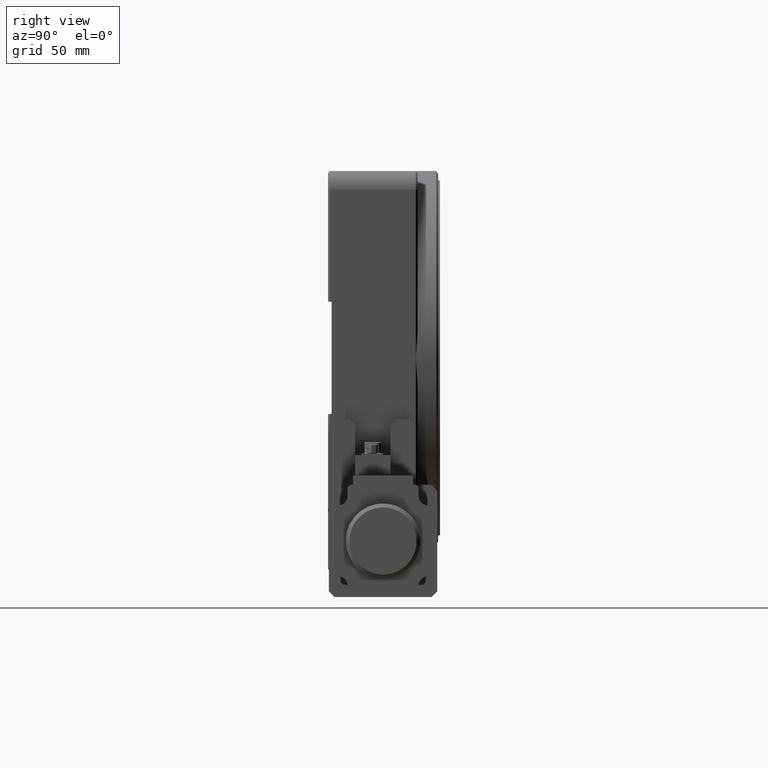
[diagram: clean part render]
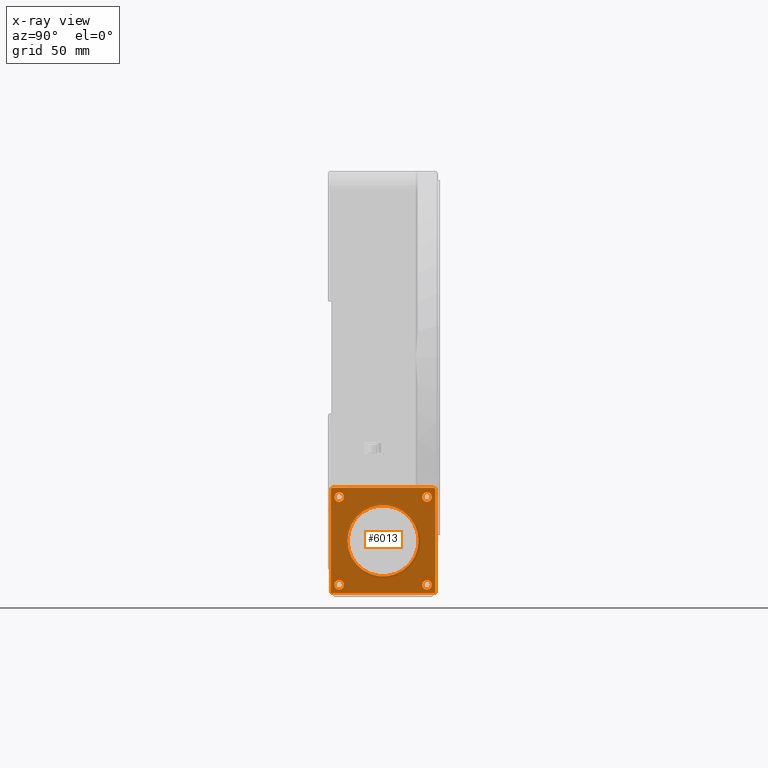
[diagram: x-ray — body ghosted, one internal face saturated and labeled with its STEP entity id]
A machine part, right view, then the same camera in x-ray: the body is ghosted and one INTERNAL B-rep face — a face not visible from any outside direction — is saturated and labeled: STEP entity #6013.
In plain terms, the highlighted planar face has unit normal (-1, -0, -0).
Its self-contained STEP definition (entity closure, byte-faithful):
#5 = CARTESIAN_POINT ( 'NONE',  ( 211.9999999999999700, 5.999999999999963600, -174.4999999999999700 ) ) ;
#218 = CARTESIAN_POINT ( 'NONE',  ( 211.9999999999999700, 57.49999999999995700, -225.8228756555322400 ) ) ;
#483 = VERTEX_POINT ( 'NONE', #12461 ) ;
#560 = VERTEX_POINT ( 'NONE', #37874 ) ;
#701 = DIRECTION ( 'NONE',  ( 1.000000000000000000, 9.381252327465557100E-016, 6.943570314702293000E-016 ) ) ;
#1060 = CARTESIAN_POINT ( 'NONE',  ( 211.9999999999999400, 52.99999999999996400, -174.4999999999999700 ) ) ;
#1563 = ORIENTED_EDGE ( 'NONE', *, *, #35692, .F. ) ;
#1700 = VERTEX_POINT ( 'NONE', #21903 ) ;
#1757 = ORIENTED_EDGE ( 'NONE', *, *, #31842, .T. ) ;
#2151 = DIRECTION ( 'NONE',  ( -1.000000000000000000, -9.381252327465557100E-016, -6.943570314702293000E-016 ) ) ;
#2283 = EDGE_CURVE ( 'NONE', #1700, #32612, #33193, .T. ) ;
#2380 = DIRECTION ( 'NONE',  ( 0.0000000000000000000, -1.000000000000000000, 1.110223024625155500E-013 ) ) ;
#2661 = ORIENTED_EDGE ( 'NONE', *, *, #40936, .T. ) ;
#3300 = CIRCLE ( 'NONE', #15641, 2.000000000000001800 ) ;
#3454 = DIRECTION ( 'NONE',  ( 0.0000000000000000000, -1.000000000000000000, 0.0000000000000000000 ) ) ;
#3483 = FACE_BOUND ( 'NONE', #11794, .T. ) ;
#3586 = CARTESIAN_POINT ( 'NONE',  ( 212.0000000000000000, 3.449999999999963300, -221.4999999999999400 ) ) ;
#4208 = CARTESIAN_POINT ( 'NONE',  ( 211.9999999999999700, 52.99999999999995700, -221.4999999999999400 ) ) ;
#4390 = VERTEX_POINT ( 'NONE', #19292 ) ;
#4634 = CIRCLE ( 'NONE', #6058, 2.550000000000000300 ) ;
#4672 = PLANE ( 'NONE',  #8717 ) ;
#5030 = CARTESIAN_POINT ( 'NONE',  ( 211.9999999999999700, 3.449999999999963300, -174.4999999999999700 ) ) ;
#5362 = ORIENTED_EDGE ( 'NONE', *, *, #19975, .T. ) ;
#5453 = VECTOR ( 'NONE', #48903, 1000.000000000000000 ) ;
#5797 = DIRECTION ( 'NONE',  ( 1.000000000000000000, 9.381252327465557100E-016, 6.943570314702293000E-016 ) ) ;
#6013 = ADVANCED_FACE ( 'NONE', ( #35267, #24645, #14032, #3483, #15287, #12768 ), #4672, .T. ) ;
#6058 = AXIS2_PLACEMENT_3D ( 'NONE', #31501, #46917, #3454 ) ;
#6110 = DIRECTION ( 'NONE',  ( 1.000000000000000000, 9.381252327465557100E-016, 6.943570314702293000E-016 ) ) ;
#6232 = AXIS2_PLACEMENT_3D ( 'NONE', #16722, #36950, #24418 ) ;
#6347 = CIRCLE ( 'NONE', #43045, 2.549999999999996700 ) ;
#6769 = CIRCLE ( 'NONE', #26236, 2.000000000000001800 ) ;
#6893 = ORIENTED_EDGE ( 'NONE', *, *, #43197, .T. ) ;
#7453 = DIRECTION ( 'NONE',  ( 1.000000000000000000, 9.381252327465557100E-016, 6.943570314702293000E-016 ) ) ;
#7718 = DIRECTION ( 'NONE',  ( 0.0000000000000000000, -1.000000000000000000, 0.0000000000000000000 ) ) ;
#8191 = CARTESIAN_POINT ( 'NONE',  ( 211.9999999999999400, 48.49999999999995700, -197.9999999999999100 ) ) ;
#8489 = CIRCLE ( 'NONE', #39493, 2.550000000000000300 ) ;
#8499 = EDGE_CURVE ( 'NONE', #37992, #560, #42295, .T. ) ;
#8717 = AXIS2_PLACEMENT_3D ( 'NONE', #12968, #45011, #12629 ) ;
#10042 = DIRECTION ( 'NONE',  ( -9.492539091162108100E-016, 1.000000000000000000, -1.055179245494993600E-017 ) ) ;
#10323 = EDGE_CURVE ( 'NONE', #38901, #47508, #46814, .T. ) ;
#10557 = EDGE_CURVE ( 'NONE', #32612, #1700, #6347, .T. ) ;
#11794 = EDGE_LOOP ( 'NONE', ( #48353, #11979 ) ) ;
#11877 = AXIS2_PLACEMENT_3D ( 'NONE', #25011, #49325, #29063 ) ;
#11979 = ORIENTED_EDGE ( 'NONE', *, *, #38593, .T. ) ;
#12174 = CARTESIAN_POINT ( 'NONE',  ( 211.9999999999999700, 57.32287565553230000, -225.9999999999998900 ) ) ;
#12461 = CARTESIAN_POINT ( 'NONE',  ( 212.0000000000000300, 1.499999999999956300, -225.8228756555322400 ) ) ;
#12629 = DIRECTION ( 'NONE',  ( 9.492539091162108100E-016, -1.000000000000000000, 1.055179245494993600E-017 ) ) ;
#12768 = FACE_BOUND ( 'NONE', #33877, .T. ) ;
#12885 = CARTESIAN_POINT ( 'NONE',  ( 212.0000000000000000, 8.549999999999963400, -221.4999999999999400 ) ) ;
#12916 = LINE ( 'NONE', #49404, #5453 ) ;
#12968 = CARTESIAN_POINT ( 'NONE',  ( 211.9999999999999700, 2.999999999999954300, -171.4999999999999100 ) ) ;
#13076 = VECTOR ( 'NONE', #17649, 1000.000000000000000 ) ;
#13318 = ORIENTED_EDGE ( 'NONE', *, *, #10557, .T. ) ;
#13764 = VERTEX_POINT ( 'NONE', #39799 ) ;
#13810 = ORIENTED_EDGE ( 'NONE', *, *, #50636, .T. ) ;
#13826 = CIRCLE ( 'NONE', #38591, 2.000000000000001800 ) ;
#14032 = FACE_BOUND ( 'NONE', #28939, .T. ) ;
#14790 = DIRECTION ( 'NONE',  ( 0.0000000000000000000, -1.000000000000000000, 0.0000000000000000000 ) ) ;
#15287 = FACE_BOUND ( 'NONE', #42944, .T. ) ;
#15641 = AXIS2_PLACEMENT_3D ( 'NONE', #50190, #18010, #2380 ) ;
#15949 = AXIS2_PLACEMENT_3D ( 'NONE', #46121, #22293, #50101 ) ;
#16722 = CARTESIAN_POINT ( 'NONE',  ( 211.9999999999999700, 52.99999999999995700, -221.4999999999999400 ) ) ;
#17068 = AXIS2_PLACEMENT_3D ( 'NONE', #4208, #23529, #23861 ) ;
#17291 = CARTESIAN_POINT ( 'NONE',  ( 211.9999999999999400, 57.49999999999995700, -214.9999999999998900 ) ) ;
#17426 = DIRECTION ( 'NONE',  ( -1.460819769243626700E-015, 1.000000000000000000, 0.0000000000000000000 ) ) ;
#17649 = DIRECTION ( 'NONE',  ( 6.943570314702294000E-016, -1.210371739530314100E-016, -1.000000000000000000 ) ) ;
#17959 = VERTEX_POINT ( 'NONE', #3586 ) ;
#18010 = DIRECTION ( 'NONE',  ( 1.000000000000000000, 9.381252327465557100E-016, 6.943570314702293000E-016 ) ) ;
#18116 = ORIENTED_EDGE ( 'NONE', *, *, #8499, .T. ) ;
#18565 = VERTEX_POINT ( 'NONE', #218 ) ;
#19292 = CARTESIAN_POINT ( 'NONE',  ( 211.9999999999999700, 2.999999999999954300, -169.4999999999999100 ) ) ;
#19460 = DIRECTION ( 'NONE',  ( 0.0000000000000000000, -1.000000000000000000, 0.0000000000000000000 ) ) ;
#19498 = EDGE_CURVE ( 'NONE', #19670, #49568, #13826, .T. ) ;
#19670 = VERTEX_POINT ( 'NONE', #31986 ) ;
#19975 = EDGE_CURVE ( 'NONE', #49568, #18565, #23681, .T. ) ;
#20542 = CIRCLE ( 'NONE', #50833, 19.00000000000000400 ) ;
#20690 = EDGE_CURVE ( 'NONE', #40509, #4390, #38501, .T. ) ;
#21094 = EDGE_CURVE ( 'NONE', #4390, #19670, #23459, .T. ) ;
#21363 = CARTESIAN_POINT ( 'NONE',  ( 211.9999999999999700, 1.499999999999959600, -170.1771243444676400 ) ) ;
#21784 = ORIENTED_EDGE ( 'NONE', *, *, #29828, .T. ) ;
#21903 = CARTESIAN_POINT ( 'NONE',  ( 211.9999999999999400, 50.44999999999996700, -174.4999999999999700 ) ) ;
#22097 = VECTOR ( 'NONE', #43925, 1000.000000000000000 ) ;
#22293 = DIRECTION ( 'NONE',  ( -1.000000000000000000, -9.381252327465557100E-016, -6.943570314702293000E-016 ) ) ;
#22700 = AXIS2_PLACEMENT_3D ( 'NONE', #42812, #27353, #14790 ) ;
#23459 = LINE ( 'NONE', #44679, #32853 ) ;
#23529 = DIRECTION ( 'NONE',  ( 1.000000000000000000, 9.381252327465557100E-016, 6.943570314702293000E-016 ) ) ;
#23681 = LINE ( 'NONE', #17291, #13076 ) ;
#23861 = DIRECTION ( 'NONE',  ( 0.0000000000000000000, -1.000000000000000000, 0.0000000000000000000 ) ) ;
#24354 = DIRECTION ( 'NONE',  ( 0.0000000000000000000, -1.000000000000000000, 0.0000000000000000000 ) ) ;
#24418 = DIRECTION ( 'NONE',  ( 0.0000000000000000000, -1.000000000000000000, 0.0000000000000000000 ) ) ;
#24645 = FACE_BOUND ( 'NONE', #45404, .T. ) ;
#24679 = CARTESIAN_POINT ( 'NONE',  ( 211.9999999999999400, 55.54999999999996200, -174.4999999999999700 ) ) ;
#25011 = CARTESIAN_POINT ( 'NONE',  ( 211.9999999999999400, 52.99999999999996400, -174.4999999999999700 ) ) ;
#25961 = CARTESIAN_POINT ( 'NONE',  ( 211.9999999999999700, 29.49999999999995700, -197.9999999999999100 ) ) ;
#25970 = DIRECTION ( 'NONE',  ( 0.0000000000000000000, -1.000000000000000000, 0.0000000000000000000 ) ) ;
#26236 = AXIS2_PLACEMENT_3D ( 'NONE', #49600, #2151, #41616 ) ;
#26432 = VERTEX_POINT ( 'NONE', #43076 ) ;
#26476 = LINE ( 'NONE', #47911, #22097 ) ;
#27353 = DIRECTION ( 'NONE',  ( 1.000000000000000000, 9.381252327465557100E-016, 6.943570314702293000E-016 ) ) ;
#28082 = EDGE_CURVE ( 'NONE', #45530, #26432, #38249, .T. ) ;
#28939 = EDGE_LOOP ( 'NONE', ( #48577, #2661 ) ) ;
#29001 = CARTESIAN_POINT ( 'NONE',  ( 211.9999999999999700, 29.49999999999995700, -197.9999999999999100 ) ) ;
#29063 = DIRECTION ( 'NONE',  ( 0.0000000000000000000, -1.000000000000000000, 0.0000000000000000000 ) ) ;
#29103 = CARTESIAN_POINT ( 'NONE',  ( 211.9999999999999700, 55.54999999999996200, -221.4999999999999400 ) ) ;
#29828 = EDGE_CURVE ( 'NONE', #31870, #13764, #12916, .T. ) ;
#30148 = CARTESIAN_POINT ( 'NONE',  ( 211.9999999999999100, 57.49999999999995700, -170.1771243444676400 ) ) ;
#30676 = ORIENTED_EDGE ( 'NONE', *, *, #21094, .T. ) ;
#31368 = ORIENTED_EDGE ( 'NONE', *, *, #20690, .T. ) ;
#31501 = CARTESIAN_POINT ( 'NONE',  ( 212.0000000000000000, 5.999999999999963600, -221.4999999999999400 ) ) ;
#31842 = EDGE_CURVE ( 'NONE', #560, #37992, #49006, .T. ) ;
#31870 = VERTEX_POINT ( 'NONE', #12174 ) ;
#31986 = CARTESIAN_POINT ( 'NONE',  ( 211.9999999999999100, 55.99999999999995700, -169.4999999999999100 ) ) ;
#32612 = VERTEX_POINT ( 'NONE', #24679 ) ;
#32853 = VECTOR ( 'NONE', #10042, 1000.000000000000000 ) ;
#33193 = CIRCLE ( 'NONE', #11877, 2.549999999999996700 ) ;
#33340 = DIRECTION ( 'NONE',  ( 1.000000000000000000, 9.381252327465557100E-016, 6.943570314702293000E-016 ) ) ;
#33877 = EDGE_LOOP ( 'NONE', ( #1757, #18116 ) ) ;
#35213 = ORIENTED_EDGE ( 'NONE', *, *, #40763, .T. ) ;
#35267 = FACE_OUTER_BOUND ( 'NONE', #50699, .T. ) ;
#35459 = DIRECTION ( 'NONE',  ( -1.000000000000000000, -9.381252327465557100E-016, -6.943570314702293000E-016 ) ) ;
#35692 = EDGE_CURVE ( 'NONE', #31870, #18565, #3300, .T. ) ;
#35951 = CARTESIAN_POINT ( 'NONE',  ( 211.9999999999999100, 55.99999999999996400, -171.4999999999999700 ) ) ;
#36029 = VERTEX_POINT ( 'NONE', #12885 ) ;
#36950 = DIRECTION ( 'NONE',  ( 1.000000000000000000, 9.381252327465557100E-016, 6.943570314702293000E-016 ) ) ;
#37874 = CARTESIAN_POINT ( 'NONE',  ( 211.9999999999999700, 50.44999999999995300, -221.4999999999999400 ) ) ;
#37992 = VERTEX_POINT ( 'NONE', #29103 ) ;
#38249 = CIRCLE ( 'NONE', #40189, 19.00000000000000400 ) ;
#38501 = CIRCLE ( 'NONE', #15949, 2.000000000000001800 ) ;
#38591 = AXIS2_PLACEMENT_3D ( 'NONE', #35951, #35459, #7718 ) ;
#38593 = EDGE_CURVE ( 'NONE', #47508, #38901, #8489, .T. ) ;
#38901 = VERTEX_POINT ( 'NONE', #5030 ) ;
#39493 = AXIS2_PLACEMENT_3D ( 'NONE', #5, #7453, #19460 ) ;
#39799 = CARTESIAN_POINT ( 'NONE',  ( 212.0000000000000300, 1.677124344467623200, -225.9999999999998900 ) ) ;
#40189 = AXIS2_PLACEMENT_3D ( 'NONE', #25961, #6110, #46456 ) ;
#40509 = VERTEX_POINT ( 'NONE', #21363 ) ;
#40538 = CARTESIAN_POINT ( 'NONE',  ( 211.9999999999999700, 8.549999999999963400, -174.4999999999999700 ) ) ;
#40763 = EDGE_CURVE ( 'NONE', #483, #40509, #26476, .T. ) ;
#40936 = EDGE_CURVE ( 'NONE', #36029, #17959, #4634, .T. ) ;
#41616 = DIRECTION ( 'NONE',  ( 0.0000000000000000000, -1.000000000000000000, 0.0000000000000000000 ) ) ;
#41811 = ORIENTED_EDGE ( 'NONE', *, *, #2283, .T. ) ;
#42295 = CIRCLE ( 'NONE', #6232, 2.550000000000003800 ) ;
#42812 = CARTESIAN_POINT ( 'NONE',  ( 211.9999999999999700, 5.999999999999963600, -174.4999999999999700 ) ) ;
#42944 = EDGE_LOOP ( 'NONE', ( #41811, #13318 ) ) ;
#43045 = AXIS2_PLACEMENT_3D ( 'NONE', #1060, #701, #24354 ) ;
#43076 = CARTESIAN_POINT ( 'NONE',  ( 212.0000000000000000, 10.49999999999995700, -197.9999999999999100 ) ) ;
#43197 = EDGE_CURVE ( 'NONE', #26432, #45530, #20542, .T. ) ;
#43302 = EDGE_CURVE ( 'NONE', #17959, #36029, #45457, .T. ) ;
#43925 = DIRECTION ( 'NONE',  ( -6.943570314702294000E-016, 1.210371739530314100E-016, 1.000000000000000000 ) ) ;
#44679 = CARTESIAN_POINT ( 'NONE',  ( 211.9999999999999700, 2.999999999999954300, -169.4999999999999100 ) ) ;
#45011 = DIRECTION ( 'NONE',  ( -1.000000000000000000, -9.492539091162108100E-016, -6.943570314702293000E-016 ) ) ;
#45404 = EDGE_LOOP ( 'NONE', ( #47415, #6893 ) ) ;
#45457 = CIRCLE ( 'NONE', #51515, 2.550000000000000300 ) ;
#45530 = VERTEX_POINT ( 'NONE', #8191 ) ;
#45611 = CARTESIAN_POINT ( 'NONE',  ( 212.0000000000000000, 5.999999999999963600, -221.4999999999999400 ) ) ;
#46121 = CARTESIAN_POINT ( 'NONE',  ( 211.9999999999999700, 2.999999999999954300, -171.4999999999999700 ) ) ;
#46456 = DIRECTION ( 'NONE',  ( -1.460819769243626700E-015, 1.000000000000000000, 0.0000000000000000000 ) ) ;
#46814 = CIRCLE ( 'NONE', #22700, 2.550000000000000300 ) ;
#46917 = DIRECTION ( 'NONE',  ( 1.000000000000000000, 9.381252327465557100E-016, 6.943570314702293000E-016 ) ) ;
#47415 = ORIENTED_EDGE ( 'NONE', *, *, #28082, .T. ) ;
#47508 = VERTEX_POINT ( 'NONE', #40538 ) ;
#47911 = CARTESIAN_POINT ( 'NONE',  ( 212.0000000000000000, 1.499999999999959600, -180.9999999999998600 ) ) ;
#48353 = ORIENTED_EDGE ( 'NONE', *, *, #10323, .T. ) ;
#48577 = ORIENTED_EDGE ( 'NONE', *, *, #43302, .T. ) ;
#48903 = DIRECTION ( 'NONE',  ( 9.436895709313832600E-016, -1.000000000000000000, -9.993358904313220600E-017 ) ) ;
#49006 = CIRCLE ( 'NONE', #17068, 2.550000000000003800 ) ;
#49325 = DIRECTION ( 'NONE',  ( 1.000000000000000000, 9.381252327465557100E-016, 6.943570314702293000E-016 ) ) ;
#49404 = CARTESIAN_POINT ( 'NONE',  ( 212.0000000000000000, 12.49999999999997000, -225.9999999999998900 ) ) ;
#49568 = VERTEX_POINT ( 'NONE', #30148 ) ;
#49600 = CARTESIAN_POINT ( 'NONE',  ( 212.0000000000000300, 2.999999999999954300, -224.4999999999999400 ) ) ;
#50101 = DIRECTION ( 'NONE',  ( 0.0000000000000000000, -1.000000000000000000, 0.0000000000000000000 ) ) ;
#50190 = CARTESIAN_POINT ( 'NONE',  ( 211.9999999999999700, 55.99999999999996400, -224.4999999999999400 ) ) ;
#50636 = EDGE_CURVE ( 'NONE', #13764, #483, #6769, .T. ) ;
#50699 = EDGE_LOOP ( 'NONE', ( #30676, #51047, #5362, #1563, #21784, #13810, #35213, #31368 ) ) ;
#50833 = AXIS2_PLACEMENT_3D ( 'NONE', #29001, #33340, #17426 ) ;
#51047 = ORIENTED_EDGE ( 'NONE', *, *, #19498, .T. ) ;
#51515 = AXIS2_PLACEMENT_3D ( 'NONE', #45611, #5797, #25970 ) ;